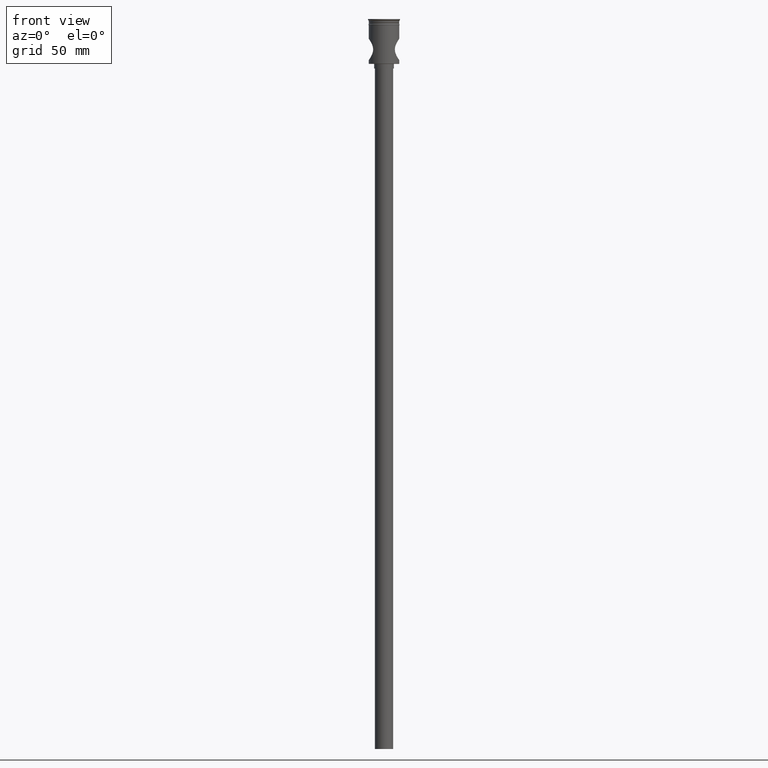
[diagram: clean part render]
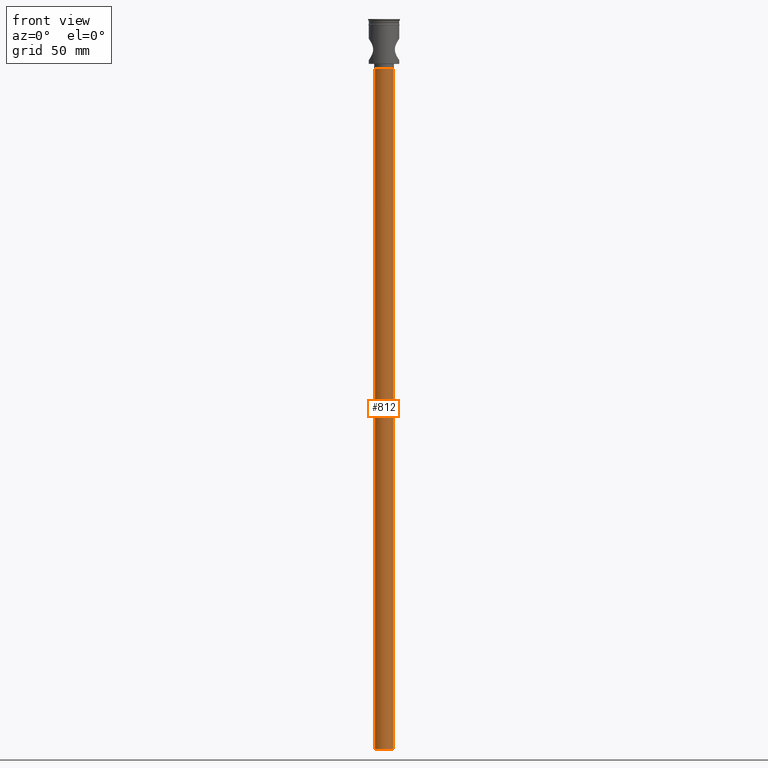
[diagram: same view with one face highlighted and labeled with its STEP entity id]
A machine part, front view. The second image highlights one B-rep face of the part: STEP entity #812.
In plain terms, the highlighted cylindrical surface (edge-blend (fillet) strip) has radius 6 mm, axis along (-0, -0, 1).
Its self-contained STEP definition (entity closure, byte-faithful):
#28 = VERTEX_POINT ( 'NONE', #281 ) ;
#49 = LINE ( 'NONE', #1459, #871 ) ;
#103 = EDGE_LOOP ( 'NONE', ( #940, #1027, #893, #916 ) ) ;
#140 = EDGE_CURVE ( 'NONE', #164, #1113, #1492, .T. ) ;
#164 = VERTEX_POINT ( 'NONE', #590 ) ;
#220 = EDGE_CURVE ( 'NONE', #164, #28, #747, .T. ) ;
#281 = CARTESIAN_POINT ( 'NONE',  ( -6.000000000000000888, 7.347880794884120722E-16, -479.5000000000000568 ) ) ;
#313 = DIRECTION ( 'NONE',  ( -0.000000000000000000, -0.000000000000000000, 1.000000000000000000 ) ) ;
#440 = DIRECTION ( 'NONE',  ( -1.000000000000000000, 0.000000000000000000, 0.000000000000000000 ) ) ;
#448 = CARTESIAN_POINT ( 'NONE',  ( 6.000000000000000888, 0.000000000000000000, -479.5000000000000568 ) ) ;
#474 = CYLINDRICAL_SURFACE ( 'NONE', #1169, 6.000000000000000888 ) ;
#590 = CARTESIAN_POINT ( 'NONE',  ( 6.000000000000000888, 0.000000000000000000, -479.5000000000000568 ) ) ;
#645 = VECTOR ( 'NONE', #1377, 1000.000000000000000 ) ;
#652 = CIRCLE ( 'NONE', #1288, 6.000000000000000888 ) ;
#662 = CARTESIAN_POINT ( 'NONE',  ( -6.000000000000000888, 7.347880794884120722E-16, -32.50000000000000000 ) ) ;
#684 = VERTEX_POINT ( 'NONE', #662 ) ;
#747 = CIRCLE ( 'NONE', #895, 6.000000000000000888 ) ;
#760 = EDGE_CURVE ( 'NONE', #28, #684, #49, .T. ) ;
#806 = DIRECTION ( 'NONE',  ( -1.000000000000000000, 0.000000000000000000, 0.000000000000000000 ) ) ;
#808 = DIRECTION ( 'NONE',  ( 1.000000000000000000, 0.000000000000000000, 0.000000000000000000 ) ) ;
#812 = ADVANCED_FACE ( 'NONE', ( #1181 ), #474, .T. ) ;
#871 = VECTOR ( 'NONE', #313, 1000.000000000000000 ) ;
#893 = ORIENTED_EDGE ( 'NONE', *, *, #140, .T. ) ;
#895 = AXIS2_PLACEMENT_3D ( 'NONE', #947, #1190, #806 ) ;
#916 = ORIENTED_EDGE ( 'NONE', *, *, #1476, .T. ) ;
#927 = DIRECTION ( 'NONE',  ( -0.000000000000000000, -0.000000000000000000, 1.000000000000000000 ) ) ;
#940 = ORIENTED_EDGE ( 'NONE', *, *, #760, .F. ) ;
#947 = CARTESIAN_POINT ( 'NONE',  ( 0.000000000000000000, 0.000000000000000000, -479.5000000000000568 ) ) ;
#1027 = ORIENTED_EDGE ( 'NONE', *, *, #220, .F. ) ;
#1113 = VERTEX_POINT ( 'NONE', #1279 ) ;
#1169 = AXIS2_PLACEMENT_3D ( 'NONE', #1274, #927, #808 ) ;
#1181 = FACE_OUTER_BOUND ( 'NONE', #103, .T. ) ;
#1190 = DIRECTION ( 'NONE',  ( 0.000000000000000000, 0.000000000000000000, -1.000000000000000000 ) ) ;
#1274 = CARTESIAN_POINT ( 'NONE',  ( 0.000000000000000000, 0.000000000000000000, -479.5000000000000568 ) ) ;
#1279 = CARTESIAN_POINT ( 'NONE',  ( 6.000000000000000888, 0.000000000000000000, -32.50000000000000000 ) ) ;
#1288 = AXIS2_PLACEMENT_3D ( 'NONE', #1484, #1350, #440 ) ;
#1350 = DIRECTION ( 'NONE',  ( 0.000000000000000000, 0.000000000000000000, -1.000000000000000000 ) ) ;
#1377 = DIRECTION ( 'NONE',  ( -0.000000000000000000, -0.000000000000000000, 1.000000000000000000 ) ) ;
#1459 = CARTESIAN_POINT ( 'NONE',  ( -6.000000000000000888, 7.347880794884120722E-16, -479.5000000000000568 ) ) ;
#1476 = EDGE_CURVE ( 'NONE', #1113, #684, #652, .T. ) ;
#1484 = CARTESIAN_POINT ( 'NONE',  ( 0.000000000000000000, 0.000000000000000000, -32.50000000000000000 ) ) ;
#1492 = LINE ( 'NONE', #448, #645 ) ;